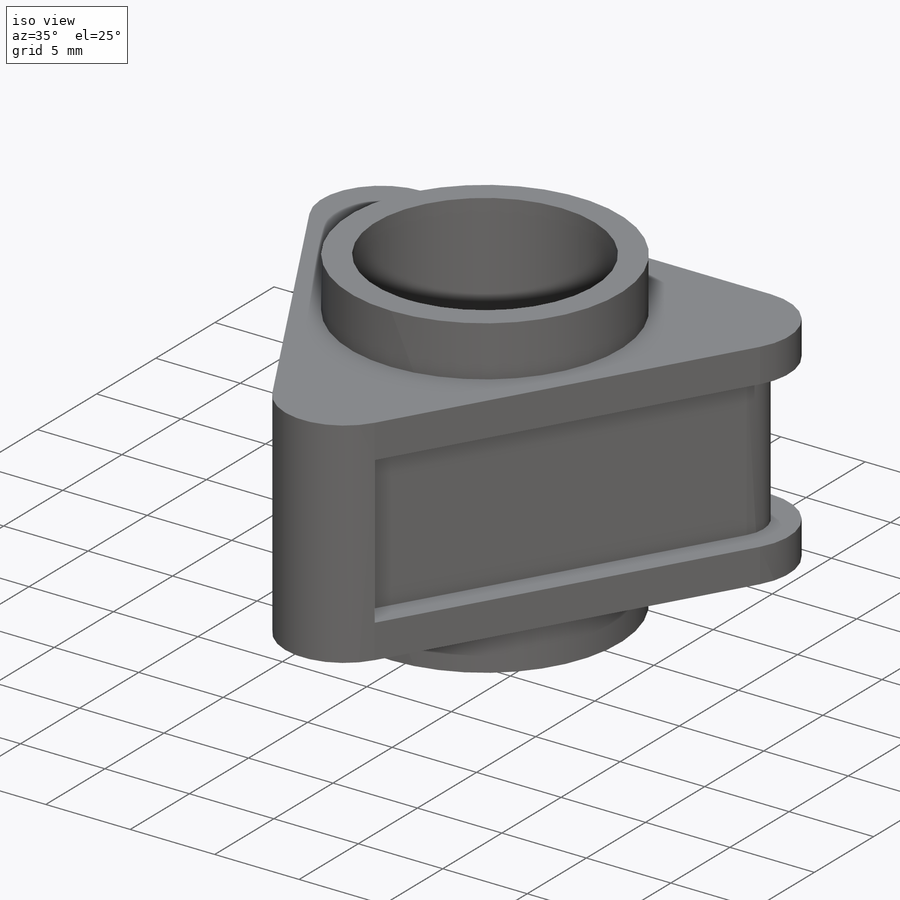
[diagram: iso view]
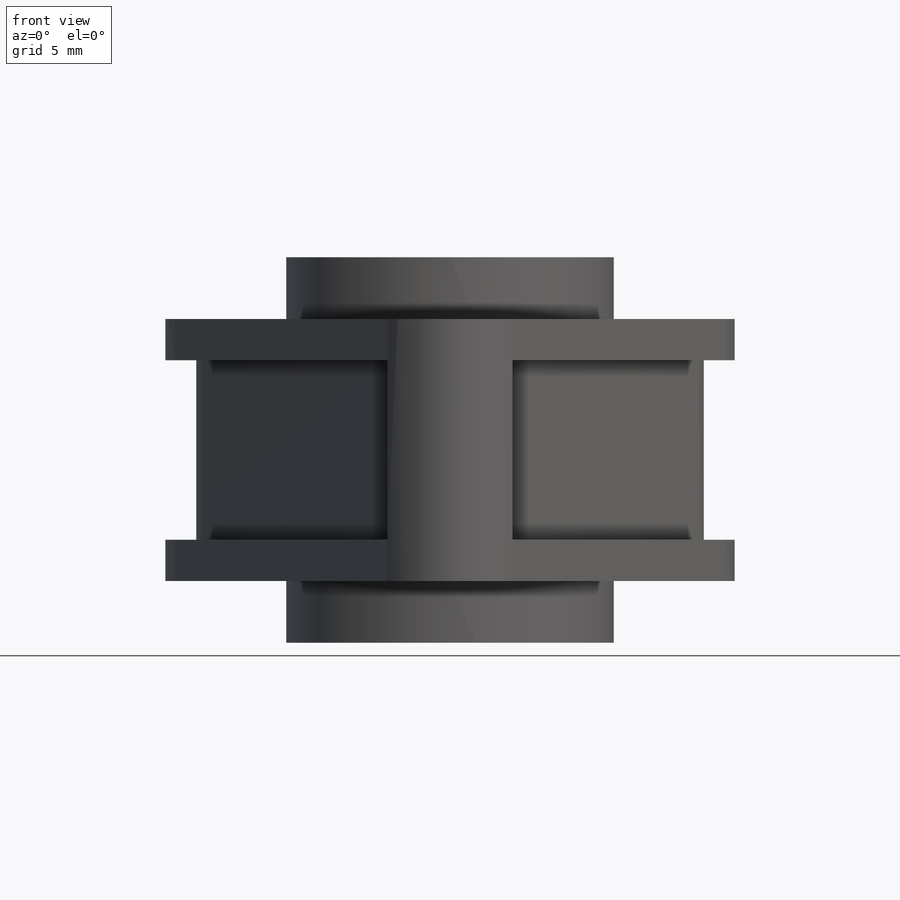
[diagram: front view]
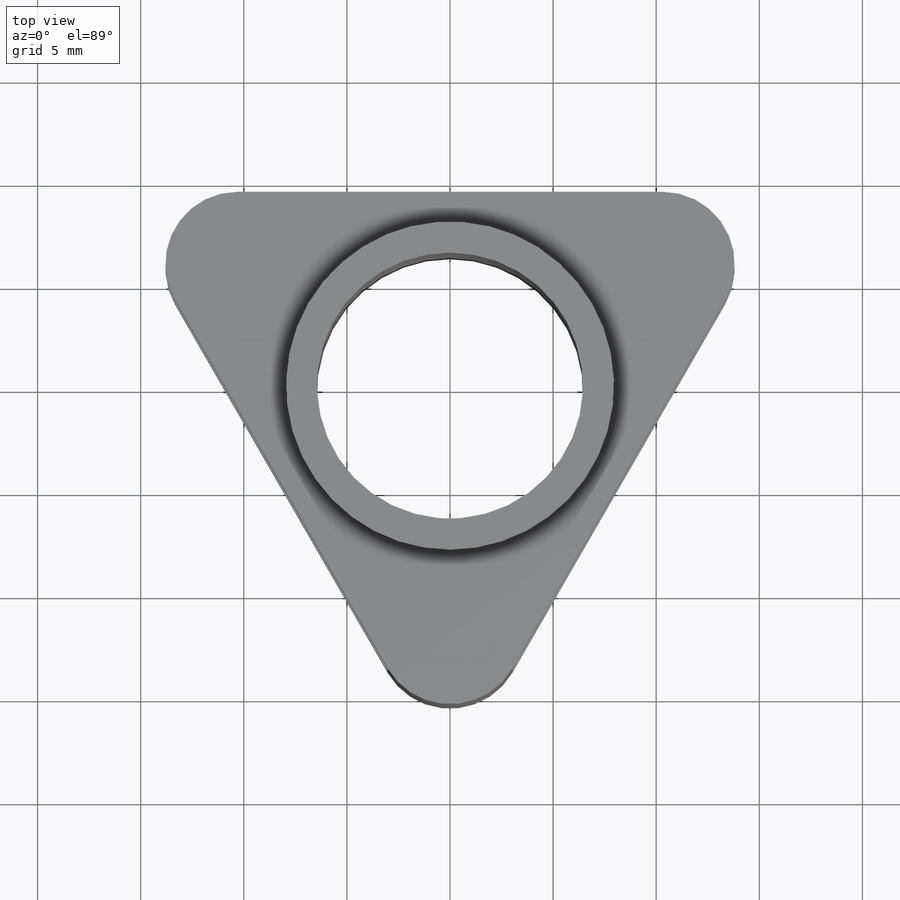
[diagram: top view]
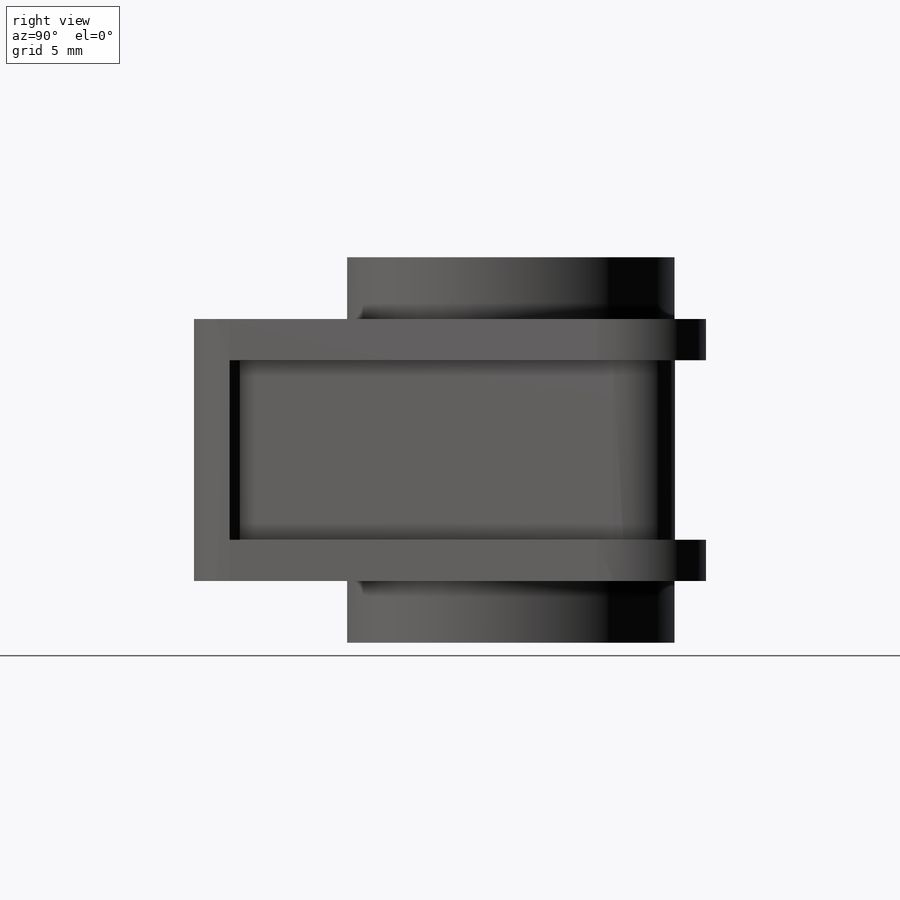
[diagram: right view]
SOLIDWORKS PART (.sldprt)
format: sldprt  version: not decoded by parser v0  size: 254,464 bytes
history: native  units: mm
features: sketch x6, extrude x6, material x1, fillet x1, pattern_circular x1 (+16 scaffold rows collapsed)
feature tree (31):
  scaffold x16  (default folders/planes/origin — collapsed)
  material  "Material <not specified>"
  sketch  "Sketch1"  dims[c1.D1=~13.831077mm c1.D2=12.9mm c2.D1=~163.531706mm c2.D2=30.0mm c2.D3=~25.980762mm c3.D1=1.5mm]
  extrude  "Boss-Extrude1"  Depth=12.7mm
  fillet  "Fillet1"  Radius=2mm
  sketch  "Sketch2"
  extrude  "Boss-Extrude2"  Depth=0.0254mm
  pattern_circular  "CirPattern1"  Count=3 Angle=360deg
  sketch  "Sketch3"
  extrude  "Boss-Extrude3"  Depth=3mm
  sketch  "Sketch4"  dims[D1=1.5mm]
  extrude  "Boss-Extrude4"  Depth=2mm
  sketch  "Sketch5"  dims[D1=0.0mm]
  extrude  "Boss-Extrude5"  Depth=2mm
  sketch  "Sketch6"  dims[D1=0.5mm D2=1.0mm D3=1.0mm]
  extrude  "Boss-Extrude6"  [1 undecoded]
decode coverage: 11 of 14 modeling features carry decoded parameters
note: ~ marks probable driven/reference dimensions
note: 1 parameter value undecoded
note: suppression state not decoded; provenance and decode notes live in map.json
